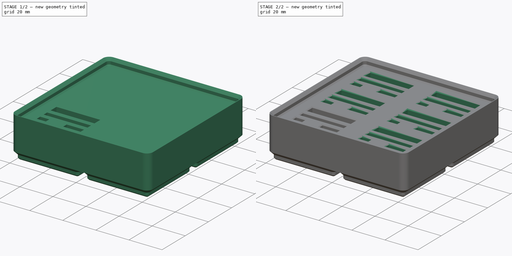
[diagram: build sequence overview — one tinted view per stage of 2, left to right]
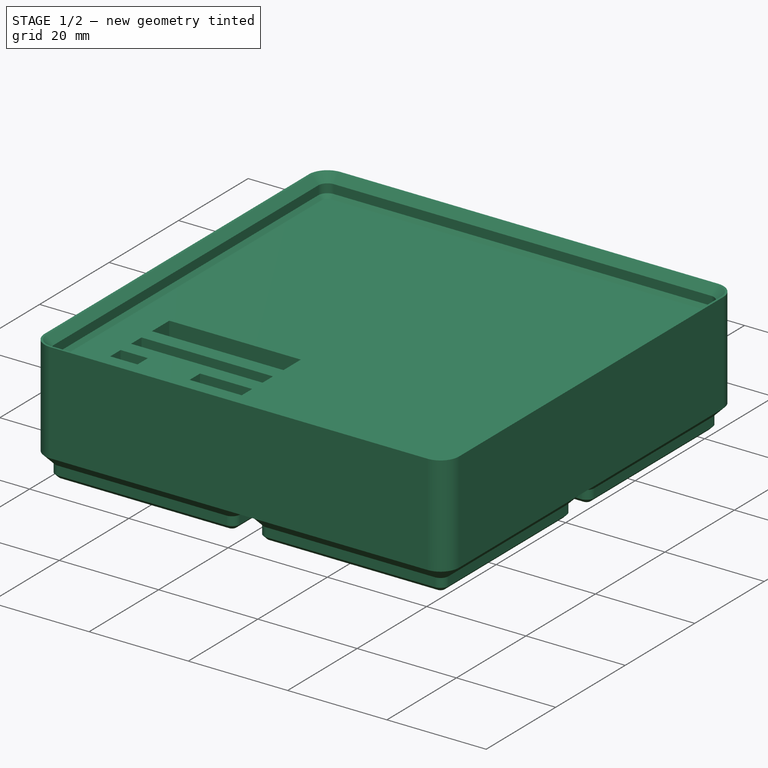
[diagram: stage 1 of 2 — iso view after this stage's code; geometry added in this stage tinted green]
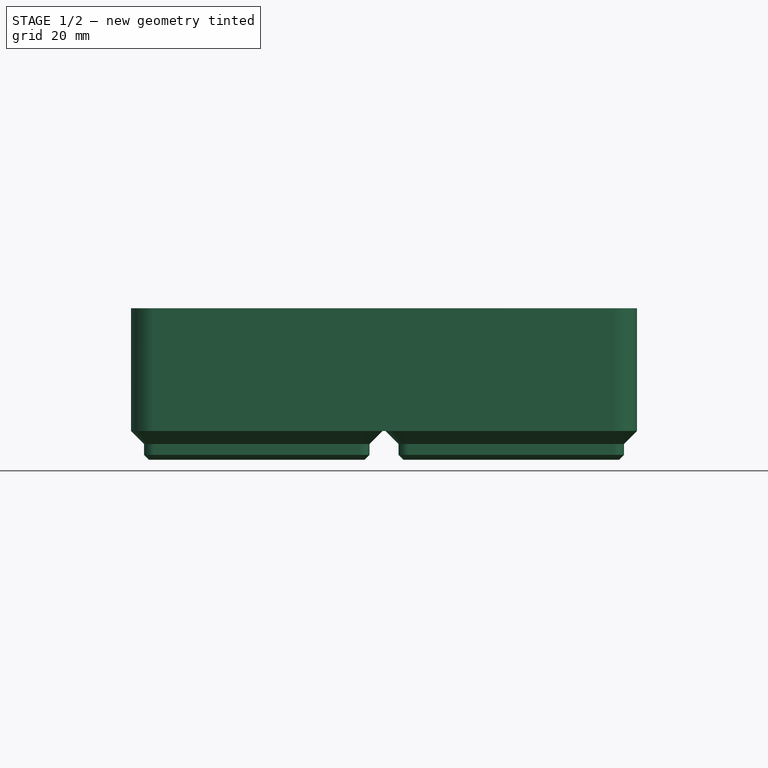
[diagram: stage 1 of 2 — front view after this stage's code; geometry added in this stage tinted green]
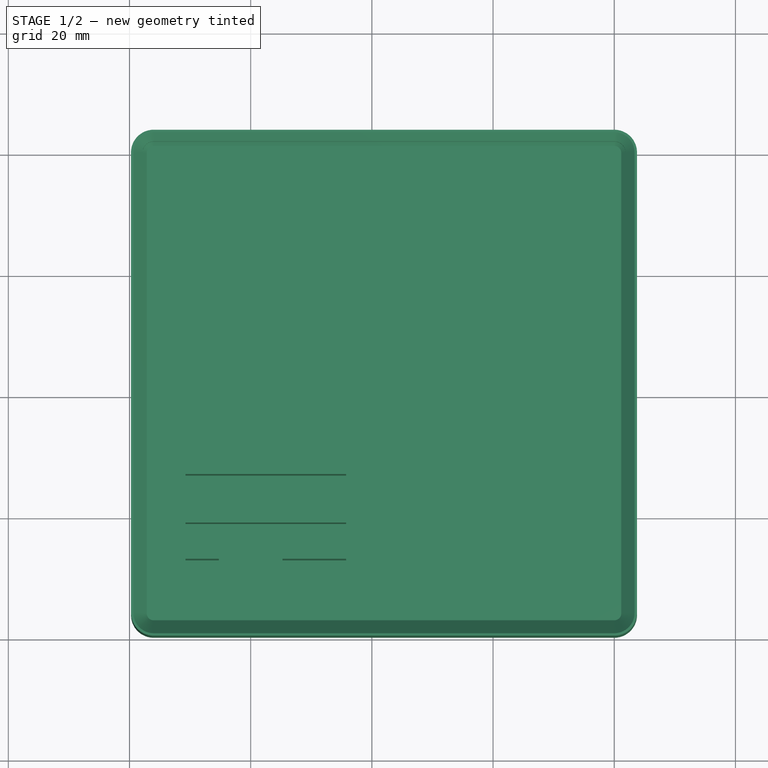
[diagram: stage 1 of 2 — top view after this stage's code; geometry added in this stage tinted green]
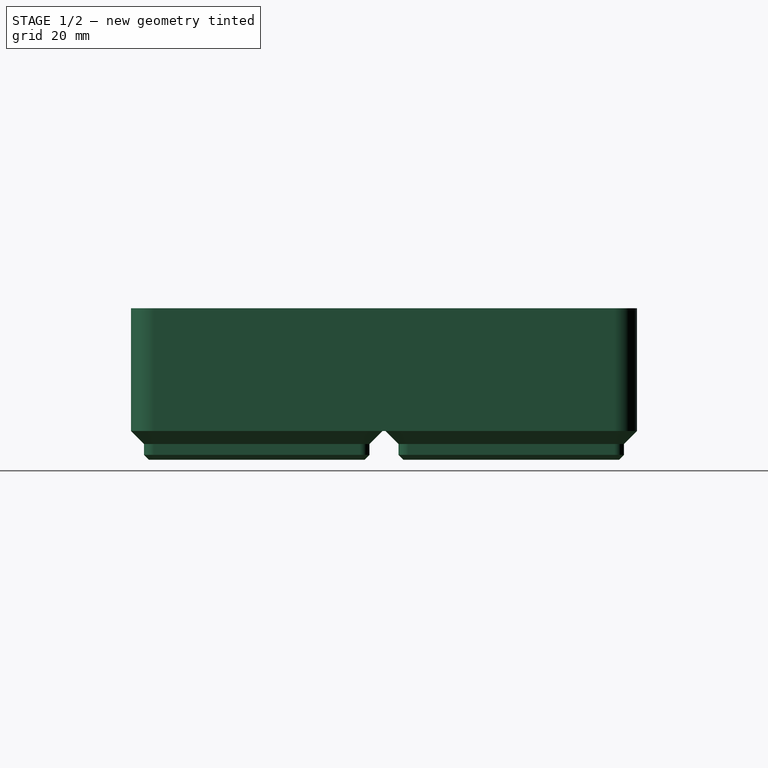
[diagram: stage 1 of 2 — right view after this stage's code; geometry added in this stage tinted green]
FCSTD DOCUMENT  (FreeCAD 1.0R39319 (Git))
Label: SandingPadHolder
License: All rights reserved
LicenseURL: https://en.wikipedia.org/wiki/All_rights_reserved
objects: PartDesign::LinearPattern×2, PartDesign::FeaturePython×1, Sketcher::SketchObject×1, PartDesign::Pocket×1, PartDesign::Chamfer×1, PartDesign::MultiTransform×1, PartDesign::Body×1
note: 17 computed .brp shape members not serialized (recipe doc carries the construction recipe); baked Part::Feature solids carry a one-line shape summary decoded from their .brp

FEATURE [PartDesign::FeaturePython] BinBlank  # WARN: FeaturePython — macro-defined, semantics opaque (R4)
  BaseProfileBottomChamfer = 0.8
  BaseProfileHeight = 4.75
  BaseProfileTopChamfer = 2.15
  BaseProfileVerticalSection = 1.8
  Baseplate = false
  BinBottomRadius = 0.8
  BinOuterRadius = 3.75
  BinVerticalRadius = 1.6
  Clearance = 0.25
  CustomHeight = 42
  GenerationLocation = 0
  HeightUnitValue = 7
  HeightUnits = 3
  MagnetHoleDepth = 2.4
  MagnetHoleDiameter = 6.2
  MagnetHoleDistanceFromEdge = 8
  MagnetHoles = false
  MagnetHolesShape = 0
  NonStandardHeight = false
  RecessedTopDepth = 0
  ScrewHoleDepth = 6
  ScrewHoleDiameter = 3
  ScrewHoles = false
  SequentialBridgingLayerHeight = 0.2
  StackingLip = true
  StackingLipBottomChamfer = 0.7
  StackingLipTopChamfer = 1.5
  StackingLipTopLedge = 0.4
  StackingLipVerticalSection = 1.8
  Suppressed = false
  TotalHeight = 21
  WallThickness = 1
  version = 0.11.9
  xGridSize = 42
  xGridUnits = 2
  xLocationOffset = 0
  xTotalWidth = 83.5
  yGridSize = 42
  yGridUnits = 2
  yLocationOffset = 0
  yTotalWidth = 83.5
  expr: BaseProfileHeight = BaseProfileBottomChamfer + BaseProfileVerticalSection + BaseProfileTopChamfer
  expr: TotalHeight = NonStandardHeight == 1 ? CustomHeight : HeightUnits * HeightUnitValue
  expr: xTotalWidth = xGridUnits * xGridSize - (Baseplate == 1 ? 0 mm : 2 * Clearance)
  expr: yTotalWidth = yGridUnits * yGridSize - (Baseplate == 1 ? 0 mm : 2 * Clearance)
FEATURE [Sketcher::SketchObject] Sketch
  ArcFitTolerance = 1e-06
  AttachmentSupport = -> [BinBlank]
  FullyConstrained = true
  MakeInternals = false
  MapMode = 5
  sketch-geometry (20):
    g0: LineSegment StartX=9.25 StartY=10 StartZ=0 EndX=14.75 EndY=10 EndZ=0
    g1: LineSegment StartX=14.75 StartY=10 StartZ=0 EndX=14.75 EndY=13 EndZ=0
    g2: LineSegment StartX=14.75 StartY=13 StartZ=0 EndX=9.25 EndY=13 EndZ=0
    g3: LineSegment StartX=9.25 StartY=13 StartZ=0 EndX=9.25 EndY=10 EndZ=0
    g4: LineSegment StartX=25.25 StartY=13 StartZ=0 EndX=25.25 EndY=10 EndZ=0
    g5: LineSegment StartX=25.25 StartY=10 StartZ=0 EndX=35.75 EndY=10 EndZ=0
    g6: LineSegment StartX=35.75 StartY=10 StartZ=0 EndX=35.75 EndY=13 EndZ=0
    g7: LineSegment StartX=35.75 StartY=13 StartZ=0 EndX=25.25 EndY=13 EndZ=0
    g8: LineSegment StartX=9.25 StartY=19 StartZ=0 EndX=9.25 EndY=16 EndZ=0
    g9: LineSegment StartX=9.25 StartY=16 StartZ=0 EndX=35.75 EndY=16 EndZ=0
    g10: LineSegment StartX=35.75 StartY=16 StartZ=0 EndX=35.75 EndY=19 EndZ=0
    g11: LineSegment StartX=35.75 StartY=19 StartZ=0 EndX=9.25 EndY=19 EndZ=0
    g12: LineSegment StartX=9.25 StartY=27 StartZ=0 EndX=9.25 EndY=22 EndZ=0
    g13: LineSegment StartX=9.25 StartY=22 StartZ=0 EndX=35.75 EndY=22 EndZ=0
    g14: LineSegment StartX=35.75 StartY=22 StartZ=0 EndX=35.75 EndY=27 EndZ=0
    g15: LineSegment StartX=35.75 StartY=27 StartZ=0 EndX=9.25 EndY=27 EndZ=0
    g16: LineSegment [constr] StartX=9.25 StartY=22 StartZ=0 EndX=9.25 EndY=19 EndZ=0
    g17: LineSegment [constr] StartX=9.25 StartY=16 StartZ=0 EndX=9.25 EndY=13 EndZ=0
    g18: LineSegment [constr] StartX=14.75 StartY=13 StartZ=0 EndX=25.25 EndY=13 EndZ=0
    g19: LineSegment [constr] StartX=35.75 StartY=16 StartZ=0 EndX=35.75 EndY=13 EndZ=0
  constraints (56):
    c: Coincident(g0,g1)
    c: Coincident(g1,g2)
    c: Coincident(g2,g3)
    c: Coincident(g3,g0)
    c: Horizontal(g0)
    c: Horizontal(g2)
    c: Vertical(g1)
    c: Vertical(g3)
    c: Coincident(g4,g5)
    c: Coincident(g5,g6)
    c: Coincident(g6,g7)
    c: Coincident(g7,g4)
    c: Vertical(g4)
    c: Vertical(g6)
    c: Horizontal(g5)
    c: Horizontal(g7)
    c: Coincident(g8,g9)
    c: Coincident(g9,g10)
    c: Coincident(g10,g11)
    c: Coincident(g11,g8)
    c: Vertical(g8)
    c: Vertical(g10)
    c: Horizontal(g9)
    c: Horizontal(g11)
    c: Coincident(g12,g13)
    c: Coincident(g13,g14)
    c: Coincident(g14,g15)
    c: Coincident(g15,g12)
    c: Vertical(g12)
    c: Vertical(g14)
    c: Horizontal(g13)
    c: Horizontal(g15)
    c: Coincident(g16,g12)
    c: Coincident(g16,g8)
    c: Coincident(g17,g8)
    c: Coincident(g17,g2)
    c: Coincident(g18,g1)
    c: Coincident(g18,g4)
    c: Vertical(g17)
    c: Vertical(g16)
    c: Horizontal(g18)
    c: Equal(g1,g4)
    c: Equal(g6,g10)
    c: Equal(g16,g17)
    c: DistanceY(g3,g3) = 3
    c: DistanceX(g0,g0) = 5.5
    c: DistanceX(g5,g5) = 10.5
    c: Coincident(g19,g9)
    c: Coincident(g19,g6)
    c: Vertical(g19)
    c: Distance(g0,g-2) = 9.25
    c: Distance(g0,g-1) = 10
    c: DistanceX(g9,g9) = 26.5
    c: Equal(g11,g13)
    c: Distance(g17,g17) = 3
    c: DistanceY(g14,g14) = 5
FEATURE [PartDesign::Pocket] Pocket
  BaseFeature = -> BinBlank
  Direction = (0,0,-1)
  Length = 15
  Length2 = 5
  Profile = -> Sketch
  ReferenceAxis = -> Sketch [N_Axis]
  Refine = true
  Suppressed = false
  Type = 0
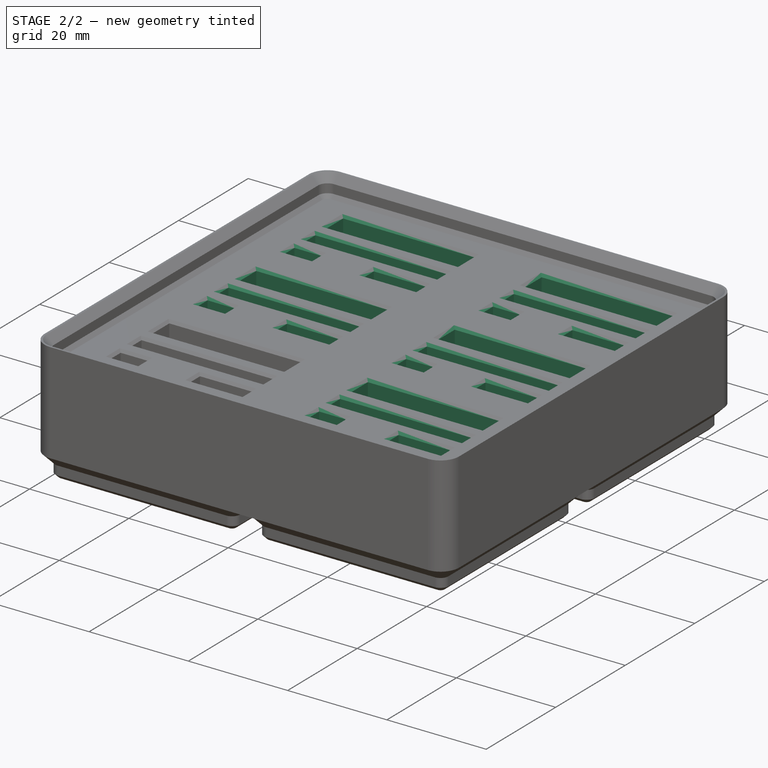
[diagram: stage 2 of 2 — iso view after this stage's code; geometry added in this stage tinted green]
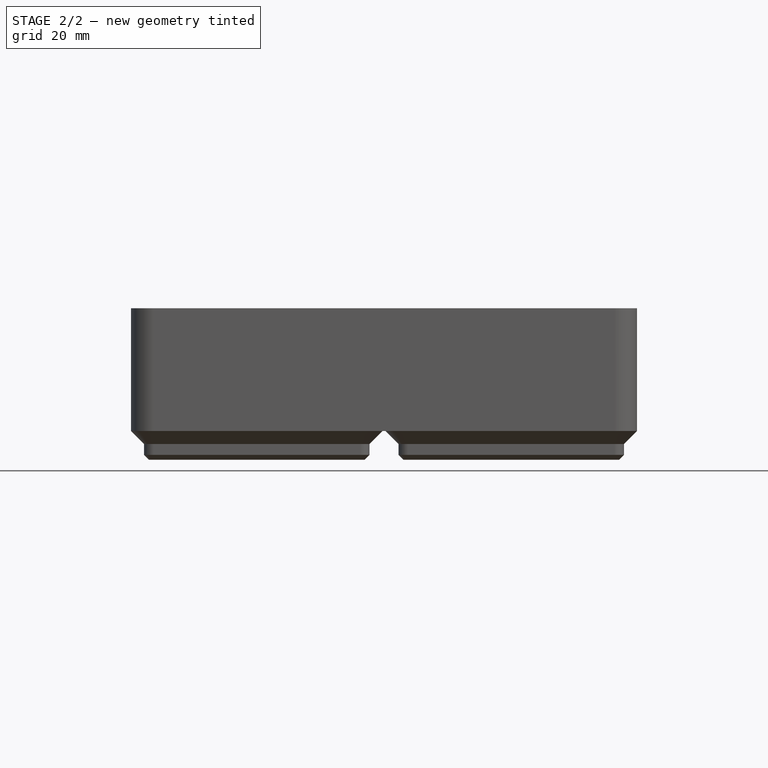
[diagram: stage 2 of 2 — front view after this stage's code; geometry added in this stage tinted green]
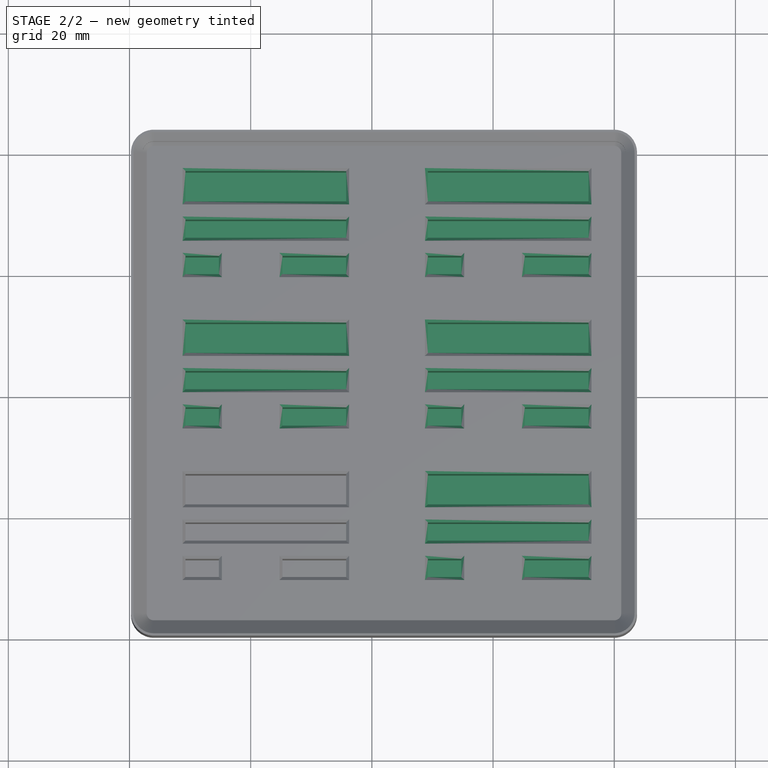
[diagram: stage 2 of 2 — top view after this stage's code; geometry added in this stage tinted green]
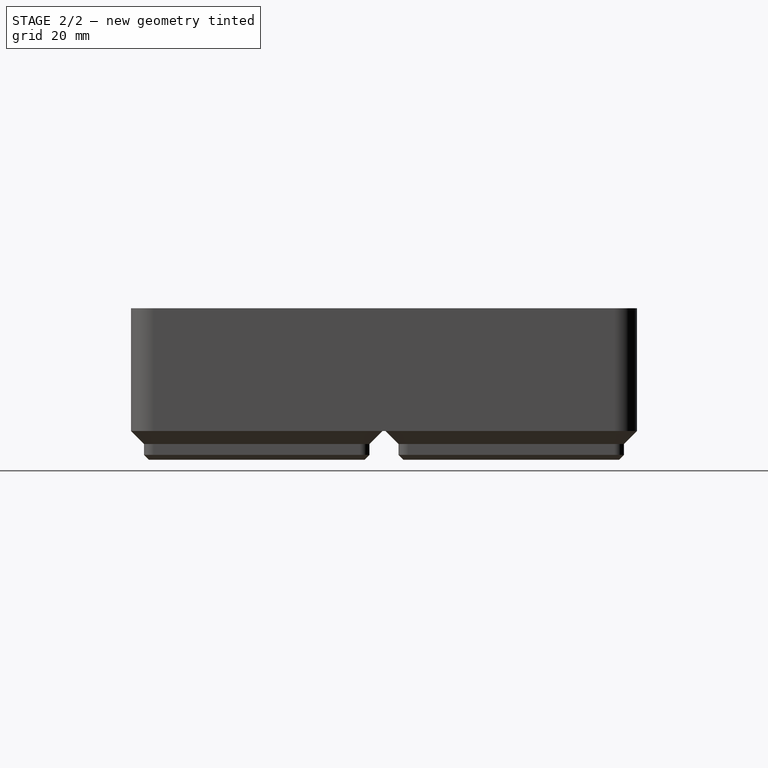
[diagram: stage 2 of 2 — right view after this stage's code; geometry added in this stage tinted green]
FEATURE [PartDesign::LinearPattern] LinearPattern
  Direction = -> X_Axis
  Length = 40
  Mode = 0
  Occurrences = 2
  Offset = 40
  Refine = true
  Suppressed = false
  TransformMode = 0
FEATURE [PartDesign::LinearPattern] LinearPattern001
  Direction = -> Y_Axis
  Length = 50
  Mode = 0
  Occurrences = 3
  Offset = 25
  Refine = true
  Suppressed = false
  TransformMode = 0
FEATURE [PartDesign::Chamfer] Chamfer
  Angle = 45
  Base = -> Pocket [Edge302,Edge299,Edge300,Edge301,Edge298,Edge297,Edge296,Edge295,Edge289,Edge290,Edge287,Edge288,Edge294,Edge293,Edge292,Edge291]
  BaseFeature = -> Pocket
  ChamferType = 0
  FlipDirection = false
  Refine = true
  Size = 0.5
  Size2 = 1
  SupportTransform = false
  Suppressed = false
  UseAllEdges = false
FEATURE [PartDesign::MultiTransform] MultiTransform
  BaseFeature = -> Chamfer
  Originals = -> [Pocket,Chamfer]
  Refine = true
  Suppressed = false
  TransformMode = 0
  Transformations = -> [LinearPattern,LinearPattern001]
FEATURE [PartDesign::Body] Body  label="Körper"
  AllowCompound = false
  Group = -> [BinBlank,Sketch,Pocket,Chamfer,MultiTransform,LinearPattern,LinearPattern001]
  Origin = -> Origin
  Tip = -> MultiTransform
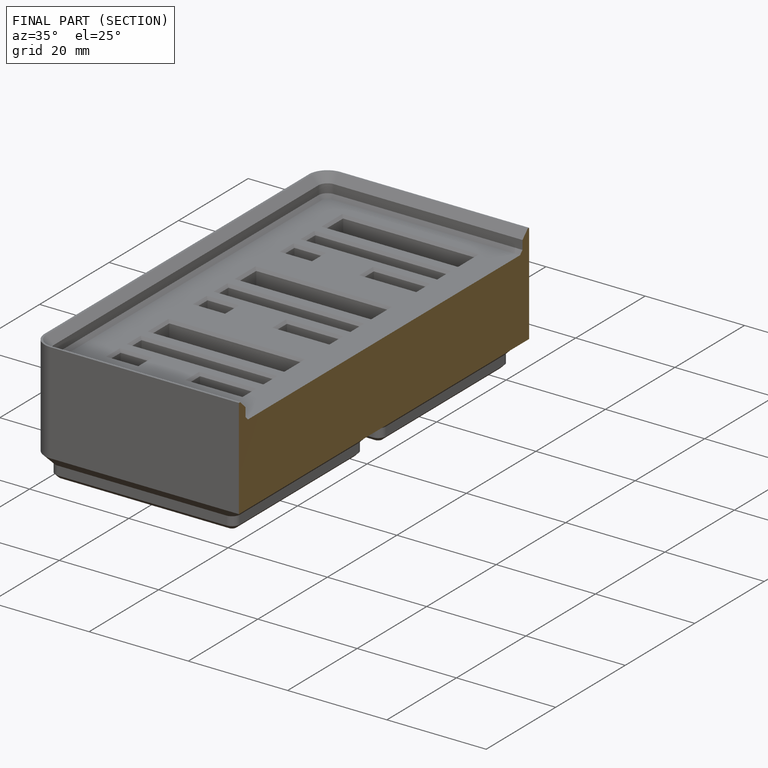
[diagram: finished part — half-section view (interior)]
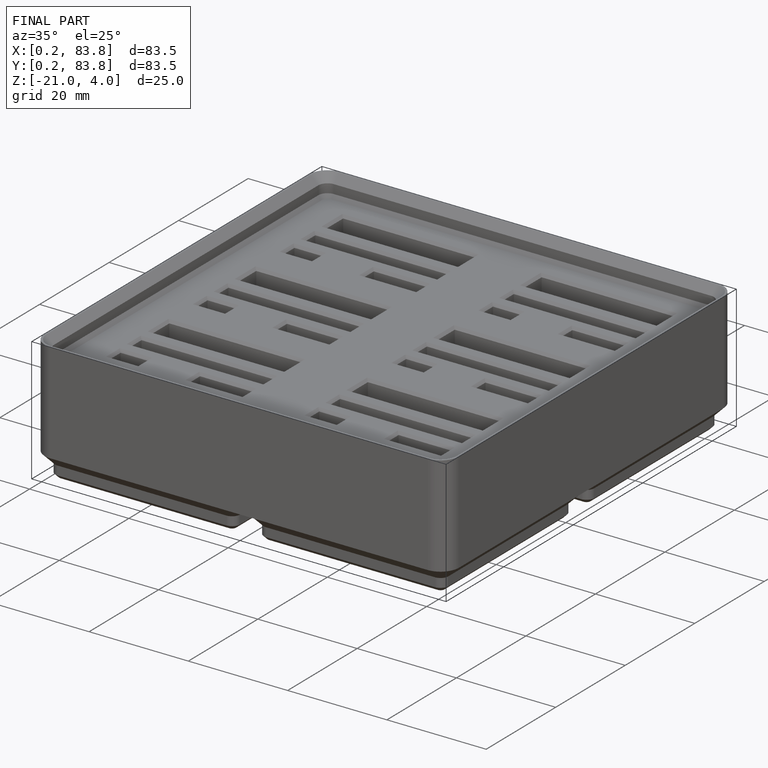
[diagram: finished part — iso view with bounding-box wireframe]
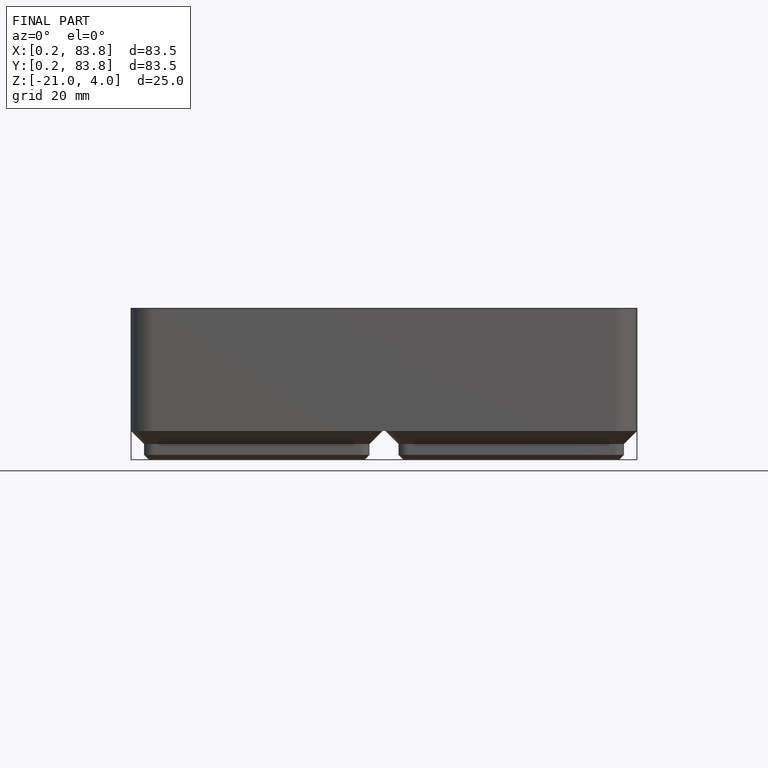
[diagram: finished part — front view with bounding-box wireframe]
